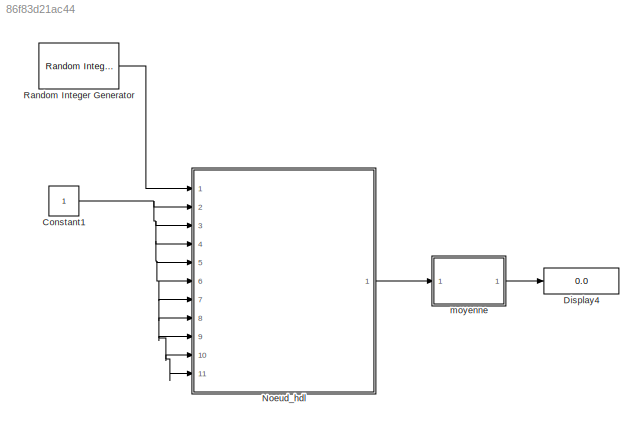
MODEL slx_86f83d21ac44
KIND model
CONFIG AbsTol = auto
CONFIG EnableMultiTasking = off
CONFIG FixedStep = auto
CONFIG MaxStep = auto
CONFIG MinStep = auto
CONFIG RelTol = 1e-3
CONFIG SampleTimeConstraint = Unconstrained
CONFIG Solver = VariableStepAuto
CONFIG SolverName = VariableStepAuto
CONFIG StartTime = 0.0
CONFIG StopTime = 1
BLOCK [Constant] Constant1
  OutDataTypeStr = boolean
  SampleTime = -1
BLOCK [Display] Display4
  Decimation = 1
  Ports = [1]
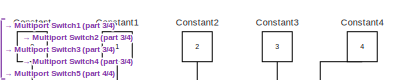
[diagram: Noeud_hdl - part 1/4, top center region]
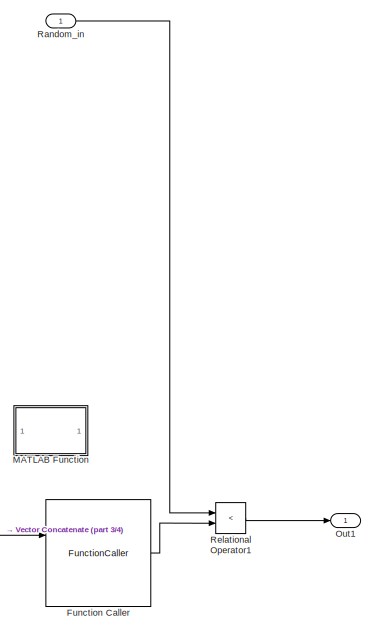
[diagram: Noeud_hdl - part 2/4, top right region]
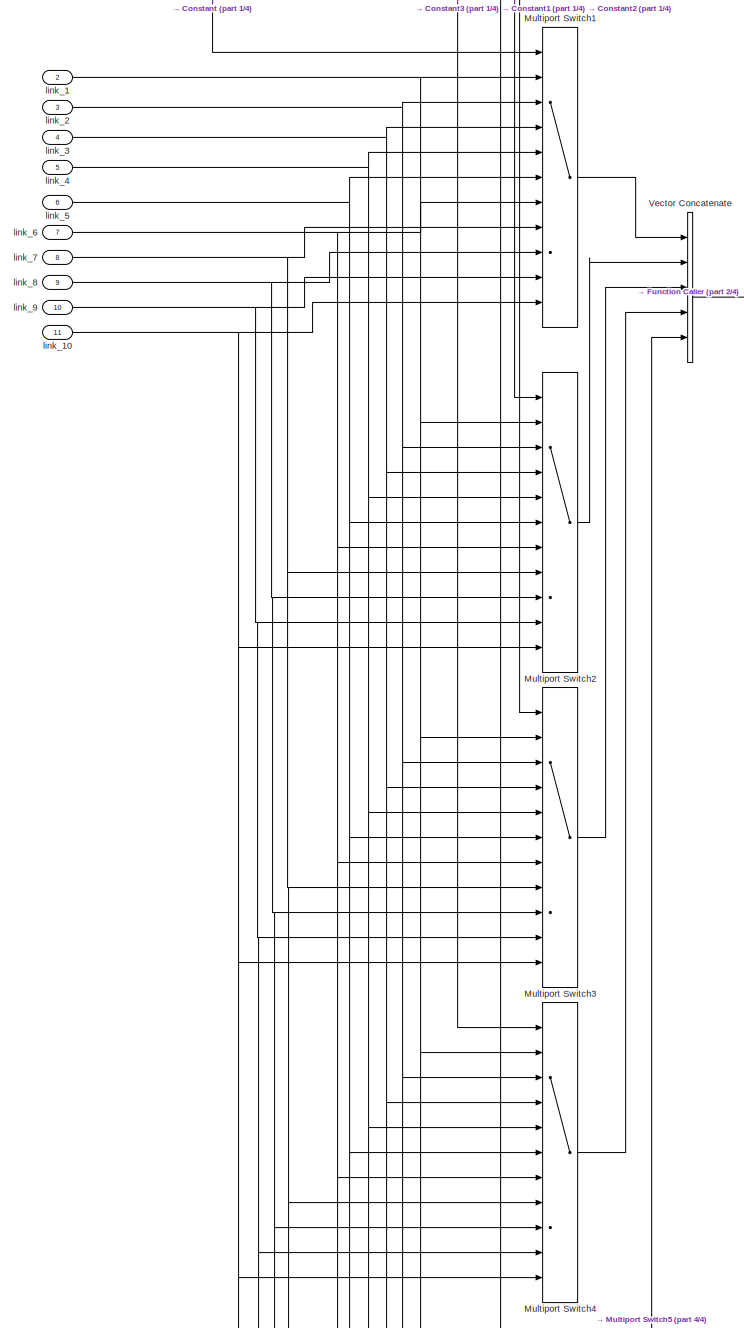
[diagram: Noeud_hdl - part 3/4, middle left region]
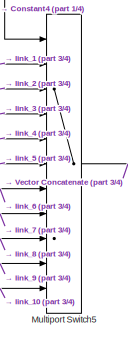
[diagram: Noeud_hdl - part 4/4, bottom center region]
BLOCK [SubSystem] Noeud_hdl
  Ports = [11, 1]
  RequestExecContextInheritance = off
  Variant = off
BLOCK [Constant] Noeud_hdl/Constant
  OutDataTypeStr = uint8
  SampleTime = -1
  Value = 0
BLOCK [Constant] Noeud_hdl/Constant1
  OutDataTypeStr = uint8
  SampleTime = -1
BLOCK [Constant] Noeud_hdl/Constant2
  OutDataTypeStr = uint8
  SampleTime = -1
  Value = 2
BLOCK [Constant] Noeud_hdl/Constant3
  OutDataTypeStr = uint8
  SampleTime = -1
  Value = 3
BLOCK [Constant] Noeud_hdl/Constant4
  OutDataTypeStr = uint8
  SampleTime = -1
  Value = 4
BLOCK [FunctionCaller] Noeud_hdl/Function Caller
  FunctionPrototype = S = Memory(addr,Node1)
  Ports = [2, 1]
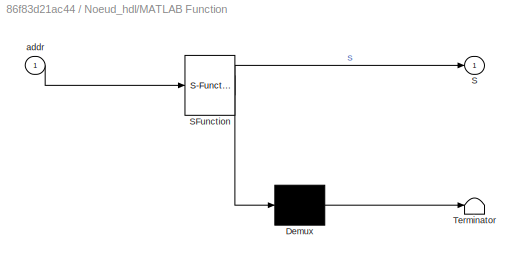
BLOCK [SubSystem] Noeud_hdl/MATLAB Function
  Commented = on
  ErrorFcn = Stateflow.Translate.translate
  PermitHierarchicalResolution = ExplicitOnly
  Ports = [1, 1]
  RequestExecContextInheritance = off
  SFBlockType = MATLAB Function
  TreatAsAtomicUnit = on
  Variant = off
BLOCK [Demux] Noeud_hdl/MATLAB Function/ Demux 
  Outputs = 1
  Ports = [1, 1]
BLOCK [S-Function] Noeud_hdl/MATLAB Function/ SFunction 
  EnableBusSupport = on
  FunctionName = sf_sfun
  PortCounts = [1 2]
  Ports = [1, 2]
  SFcnIsStateOwnerBlock = off
  SFunctionDeploymentMode = off
  Tag = Stateflow S-Function Noeud_HDL 2
BLOCK [Terminator] Noeud_hdl/MATLAB Function/ Terminator 
BLOCK [Outport] Noeud_hdl/MATLAB Function/S
  IconDisplay = Port number
BLOCK [Inport] Noeud_hdl/MATLAB Function/addr
  IconDisplay = Port number
BLOCK [MultiPortSwitch] Noeud_hdl/Multiport Switch1
  DataPortOrder = Zero-based contiguous
  InputSameDT = off
  Inputs = 10
  Ports = [11, 1]
  SaturateOnIntegerOverflow = off
BLOCK [MultiPortSwitch] Noeud_hdl/Multiport Switch2
  DataPortOrder = Zero-based contiguous
  InputSameDT = off
  Inputs = 10
  Ports = [11, 1]
  SaturateOnIntegerOverflow = off
BLOCK [MultiPortSwitch] Noeud_hdl/Multiport Switch3
  DataPortOrder = Zero-based contiguous
  InputSameDT = off
  Inputs = 10
  Ports = [11, 1]
  SaturateOnIntegerOverflow = off
BLOCK [MultiPortSwitch] Noeud_hdl/Multiport Switch4
  DataPortOrder = Zero-based contiguous
  InputSameDT = off
  Inputs = 10
  Ports = [11, 1]
  SaturateOnIntegerOverflow = off
BLOCK [MultiPortSwitch] Noeud_hdl/Multiport Switch5
  DataPortOrder = Zero-based contiguous
  InputSameDT = off
  Inputs = 10
  Ports = [11, 1]
  SaturateOnIntegerOverflow = off
BLOCK [Outport] Noeud_hdl/Out1
  IconDisplay = Port number
  OutDataTypeStr = boolean
BLOCK [Inport] Noeud_hdl/Random_in
  IconDisplay = Signal name
  OutDataTypeStr = uint16
BLOCK [RelationalOperator] Noeud_hdl/Relational Operator1
  Operator = <
  OutDataTypeStr = boolean
  Ports = [2, 1]
BLOCK [Concatenate] Noeud_hdl/Vector Concatenate
  NumInputs = 5
  Ports = [5, 1]
BLOCK [Inport] Noeud_hdl/link_1
  IconDisplay = Port number
  OutDataTypeStr = boolean
  Port = 2
BLOCK [Inport] Noeud_hdl/link_10
  IconDisplay = Port number
  OutDataTypeStr = boolean
  Port = 11
BLOCK [Inport] Noeud_hdl/link_2
  IconDisplay = Port number
  OutDataTypeStr = boolean
  Port = 3
BLOCK [Inport] Noeud_hdl/link_3
  IconDisplay = Port number
  OutDataTypeStr = boolean
  Port = 4
BLOCK [Inport] Noeud_hdl/link_4
  IconDisplay = Port number
  OutDataTypeStr = boolean
  Port = 5
BLOCK [Inport] Noeud_hdl/link_5
  IconDisplay = Port number
  OutDataTypeStr = boolean
  Port = 6
BLOCK [Inport] Noeud_hdl/link_6
  IconDisplay = Port number
  OutDataTypeStr = boolean
  Port = 7
BLOCK [Inport] Noeud_hdl/link_7
  IconDisplay = Port number
  OutDataTypeStr = boolean
  Port = 8
BLOCK [Inport] Noeud_hdl/link_8
  IconDisplay = Port number
  OutDataTypeStr = boolean
  Port = 9
BLOCK [Inport] Noeud_hdl/link_9
  IconDisplay = Port number
  OutDataTypeStr = boolean
  Port = 10
BLOCK [Reference] Random Integer Generator  REF=commrandsrc3/Random Integer
Generator
  Ports = [0, 1]
  SourceBlock = commrandsrc3/Random Integer\nGenerator
  SourceProductBaseCode = CM
  SourceProductName = Communications System Toolbox
  SourceType = Random Integer Generator
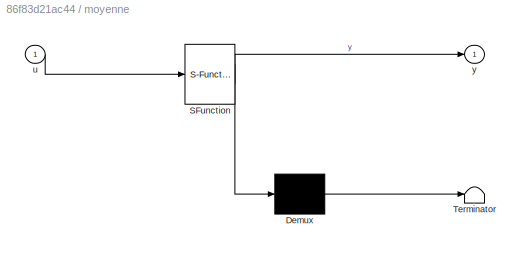
BLOCK [SubSystem] moyenne
  ErrorFcn = Stateflow.Translate.translate
  PermitHierarchicalResolution = ExplicitOnly
  Ports = [1, 1]
  RequestExecContextInheritance = off
  SFBlockType = MATLAB Function
  TreatAsAtomicUnit = on
  Variant = off
BLOCK [Demux] moyenne/ Demux 
  Outputs = 1
  Ports = [1, 1]
BLOCK [S-Function] moyenne/ SFunction 
  EnableBusSupport = on
  FunctionName = sf_sfun
  PortCounts = [1 2]
  Ports = [1, 2]
  SFcnIsStateOwnerBlock = off
  SFunctionDeploymentMode = off
  Tag = Stateflow S-Function Noeud_HDL 1
BLOCK [Terminator] moyenne/ Terminator 
BLOCK [Inport] moyenne/u
  IconDisplay = Port number
BLOCK [Outport] moyenne/y
  IconDisplay = Port number
NET Constant1:1 -> Noeud_hdl:10, Noeud_hdl:11, Noeud_hdl:2, Noeud_hdl:3, Noeud_hdl:4, Noeud_hdl:5, Noeud_hdl:6, Noeud_hdl:7, Noeud_hdl:8, Noeud_hdl:9
LINE Noeud_hdl/Constant1:1 -> Noeud_hdl/Multiport Switch2:1
LINE Noeud_hdl/Constant2:1 -> Noeud_hdl/Multiport Switch3:1
LINE Noeud_hdl/Constant3:1 -> Noeud_hdl/Multiport Switch4:1
LINE Noeud_hdl/Constant4:1 -> Noeud_hdl/Multiport Switch5:1
LINE Noeud_hdl/Constant:1 -> Noeud_hdl/Multiport Switch1:1
LINE Noeud_hdl/Function Caller:1 -> Noeud_hdl/Relational Operator1:2
LINE Noeud_hdl/Multiport Switch1:1 -> Noeud_hdl/Vector Concatenate:1
LINE Noeud_hdl/Multiport Switch2:1 -> Noeud_hdl/Vector Concatenate:2
LINE Noeud_hdl/Multiport Switch3:1 -> Noeud_hdl/Vector Concatenate:3
LINE Noeud_hdl/Multiport Switch4:1 -> Noeud_hdl/Vector Concatenate:4
LINE Noeud_hdl/Multiport Switch5:1 -> Noeud_hdl/Vector Concatenate:5
LINE Noeud_hdl/Random_in:1 -> Noeud_hdl/Relational Operator1:1
LINE Noeud_hdl/Relational Operator1:1 -> Noeud_hdl/Out1:1
LINE Noeud_hdl/Vector Concatenate:1 -> Noeud_hdl/Function Caller:1
NET Noeud_hdl/link_10:1 -> Noeud_hdl/Multiport Switch1:11, Noeud_hdl/Multiport Switch2:11, Noeud_hdl/Multiport Switch3:11, Noeud_hdl/Multiport Switch4:11, Noeud_hdl/Multiport Switch5:11
NET Noeud_hdl/link_1:1 -> Noeud_hdl/Multiport Switch1:2, Noeud_hdl/Multiport Switch2:2, Noeud_hdl/Multiport Switch3:2, Noeud_hdl/Multiport Switch4:2, Noeud_hdl/Multiport Switch5:2
NET Noeud_hdl/link_2:1 -> Noeud_hdl/Multiport Switch1:3, Noeud_hdl/Multiport Switch2:3, Noeud_hdl/Multiport Switch3:3, Noeud_hdl/Multiport Switch4:3, Noeud_hdl/Multiport Switch5:3
NET Noeud_hdl/link_3:1 -> Noeud_hdl/Multiport Switch1:4, Noeud_hdl/Multiport Switch2:4, Noeud_hdl/Multiport Switch3:4, Noeud_hdl/Multiport Switch4:4, Noeud_hdl/Multiport Switch5:4
NET Noeud_hdl/link_4:1 -> Noeud_hdl/Multiport Switch1:5, Noeud_hdl/Multiport Switch2:5, Noeud_hdl/Multiport Switch3:5, Noeud_hdl/Multiport Switch4:5, Noeud_hdl/Multiport Switch5:5
NET Noeud_hdl/link_5:1 -> Noeud_hdl/Multiport Switch1:6, Noeud_hdl/Multiport Switch2:6, Noeud_hdl/Multiport Switch3:6, Noeud_hdl/Multiport Switch4:6, Noeud_hdl/Multiport Switch5:6
NET Noeud_hdl/link_6:1 -> Noeud_hdl/Multiport Switch1:7, Noeud_hdl/Multiport Switch2:7, Noeud_hdl/Multiport Switch3:7, Noeud_hdl/Multiport Switch4:7, Noeud_hdl/Multiport Switch5:7
NET Noeud_hdl/link_7:1 -> Noeud_hdl/Multiport Switch1:8, Noeud_hdl/Multiport Switch2:8, Noeud_hdl/Multiport Switch3:8, Noeud_hdl/Multiport Switch4:8, Noeud_hdl/Multiport Switch5:8
NET Noeud_hdl/link_8:1 -> Noeud_hdl/Multiport Switch1:9, Noeud_hdl/Multiport Switch2:9, Noeud_hdl/Multiport Switch3:9, Noeud_hdl/Multiport Switch4:9, Noeud_hdl/Multiport Switch5:9
NET Noeud_hdl/link_9:1 -> Noeud_hdl/Multiport Switch1:10, Noeud_hdl/Multiport Switch2:10, Noeud_hdl/Multiport Switch3:10, Noeud_hdl/Multiport Switch4:10, Noeud_hdl/Multiport Switch5:10
LINE Noeud_hdl:1 -> moyenne:1
LINE Random Integer Generator:1 -> Noeud_hdl:1
LINE moyenne:1 -> Display4:1
note: NET lines group one-source signal fan-out (src -> all destinations, sorted); 1:1 wires keep LINE
CHART moyenne states=1 transitions=1
  STATE_LABEL 'eML_blk_kernel()'
  STATE_LABEL 'SCRIPT:\nfunction y = fcn(u)\npersistent nb_one total\nif isempty(nb_one)\n    nb_one=0;\nend\nif isempty(total)\n    total=0;\nend\nif u==1\n    nb_one = nb_one+1;\nend\ntotal = total +1;\n\ny=nb_one/total;\n'
CHART Noeud_hdl/MATLAB Function states=1 transitions=1
  STATE_LABEL 'eML_blk_kernel()'
  STATE_LABEL 'SCRIPT:\nfunction S = fcn(addr)\nMEM =[950;290;940;1];\nS=uint16(MEM(addr+1));\n\n\n       \n        \n'
